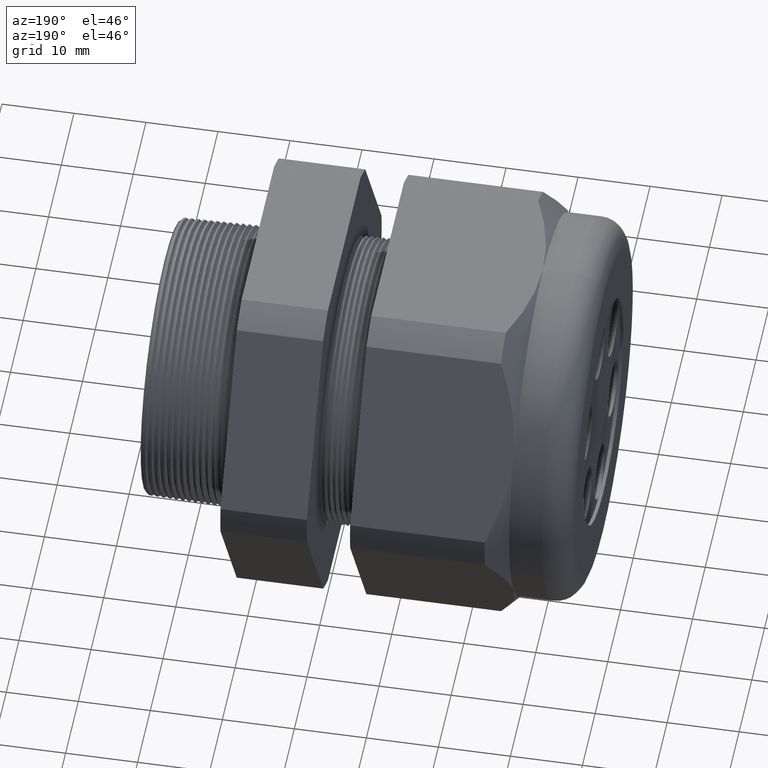
[diagram: clean part render]
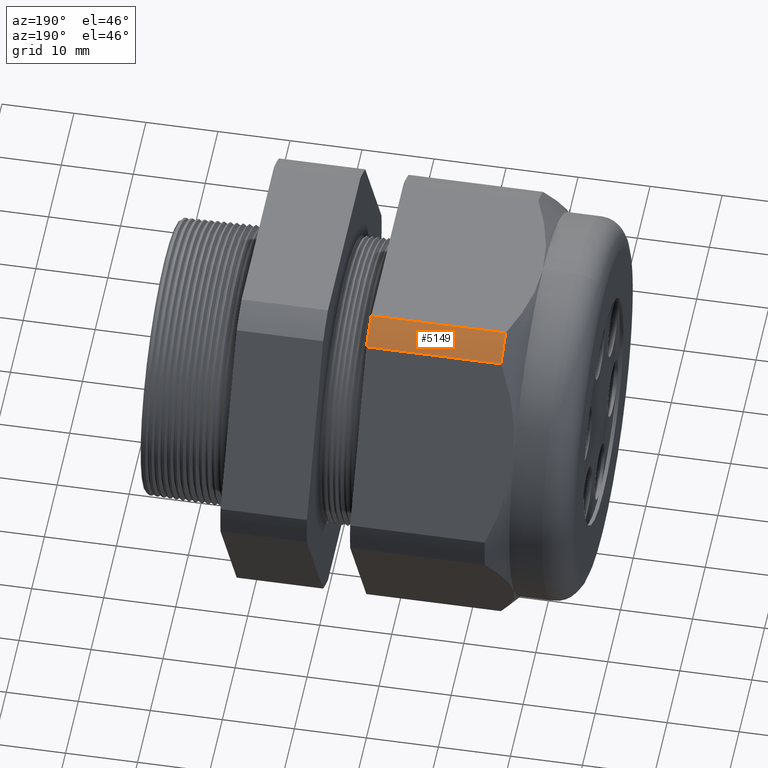
[diagram: same view with one face highlighted and labeled with its STEP entity id]
A machine part, auxiliary view. The second image highlights one B-rep face of the part: STEP entity #5149.
In plain terms, the highlighted cylindrical surface (partial cylindrical patch) has radius 29.4627 mm, axis along (-1, 0, 0).
Its self-contained STEP definition (entity closure, byte-faithful):
#76 = VERTEX_POINT ( 'NONE', #686 ) ;
#79 = VERTEX_POINT ( 'NONE', #680 ) ;
#680 = CARTESIAN_POINT ( 'NONE',  ( -1.018802799999999800, 0.5034471198646388600, 1.044999999999999900 ) ) ;
#686 = CARTESIAN_POINT ( 'NONE',  ( -1.754342000000000300, 0.5034471198646388600, 1.044999999999999900 ) ) ;
#3379 = DIRECTION ( 'NONE',  ( 0.0000000000000000000, 0.0000000000000000000, 1.000000000000000000 ) ) ;
#3380 = DIRECTION ( 'NONE',  ( -1.000000000000000000, 0.0000000000000000000, 0.0000000000000000000 ) ) ;
#3381 = CARTESIAN_POINT ( 'NONE',  ( 0.2000000000000000400, 0.0000000000000000000, 0.0000000000000000000 ) ) ;
#3382 = AXIS2_PLACEMENT_3D ( 'NONE', #3381, #3380, #3379 ) ;
#3385 = CYLINDRICAL_SURFACE ( 'NONE', #3382, 1.159950000000000000 ) ;
#3386 = FACE_OUTER_BOUND ( 'NONE', #5319, .T. ) ;
#3427 = CIRCLE ( 'NONE', #3488, 1.159950000000000000 ) ;
#3440 = DIRECTION ( 'NONE',  ( 0.0000000000000000000, 0.0000000000000000000, -1.000000000000000000 ) ) ;
#3441 = DIRECTION ( 'NONE',  ( 1.000000000000000000, 0.0000000000000000000, 0.0000000000000000000 ) ) ;
#3442 = CARTESIAN_POINT ( 'NONE',  ( -1.018802799999999800, 0.0000000000000000000, 0.0000000000000000000 ) ) ;
#3443 = AXIS2_PLACEMENT_3D ( 'NONE', #3442, #3441, #3440 ) ;
#3444 = CIRCLE ( 'NONE', #3443, 1.159950000000000000 ) ;
#3485 = DIRECTION ( 'NONE',  ( 0.0000000000000000000, 0.0000000000000000000, -1.000000000000000000 ) ) ;
#3486 = DIRECTION ( 'NONE',  ( 1.000000000000000000, 0.0000000000000000000, 0.0000000000000000000 ) ) ;
#3487 = CARTESIAN_POINT ( 'NONE',  ( -1.754342000000000300, 0.0000000000000000000, 0.0000000000000000000 ) ) ;
#3488 = AXIS2_PLACEMENT_3D ( 'NONE', #3487, #3486, #3485 ) ;
#3695 = CARTESIAN_POINT ( 'NONE',  ( -1.754342000000000300, 0.6532729870224187600, 0.9584979952648866600 ) ) ;
#3696 = DIRECTION ( 'NONE',  ( -1.000000000000000000, 0.0000000000000000000, 0.0000000000000000000 ) ) ;
#3697 = VECTOR ( 'NONE', #3696, 39.37007874015748100 ) ;
#3698 = CARTESIAN_POINT ( 'NONE',  ( 0.2000000000000000400, 0.6532729870224187600, 0.9584979952648866600 ) ) ;
#3699 = LINE ( 'NONE', #3698, #3697 ) ;
#3700 = CARTESIAN_POINT ( 'NONE',  ( -1.018802799999999800, 0.6532729870224187600, 0.9584979952648866600 ) ) ;
#3712 = DIRECTION ( 'NONE',  ( -1.000000000000000000, 0.0000000000000000000, 0.0000000000000000000 ) ) ;
#3713 = VECTOR ( 'NONE', #3712, 39.37007874015748100 ) ;
#3714 = CARTESIAN_POINT ( 'NONE',  ( 0.2000000000000000400, 0.5034471198646388600, 1.044999999999999900 ) ) ;
#3715 = LINE ( 'NONE', #3714, #3713 ) ;
#5149 = ADVANCED_FACE ( 'NONE', ( #3386 ), #3385, .T. ) ;
#5175 = ORIENTED_EDGE ( 'NONE', *, *, #5177, .F. ) ;
#5177 = EDGE_CURVE ( 'NONE', #5318, #79, #3444, .T. ) ;
#5178 = ORIENTED_EDGE ( 'NONE', *, *, #5343, .F. ) ;
#5183 = ORIENTED_EDGE ( 'NONE', *, *, #5189, .T. ) ;
#5189 = EDGE_CURVE ( 'NONE', #5322, #76, #3427, .T. ) ;
#5318 = VERTEX_POINT ( 'NONE', #3700 ) ;
#5319 = EDGE_LOOP ( 'NONE', ( #5320, #5183, #5178, #5175 ) ) ;
#5320 = ORIENTED_EDGE ( 'NONE', *, *, #5321, .T. ) ;
#5321 = EDGE_CURVE ( 'NONE', #5318, #5322, #3699, .T. ) ;
#5322 = VERTEX_POINT ( 'NONE', #3695 ) ;
#5343 = EDGE_CURVE ( 'NONE', #79, #76, #3715, .T. ) ;